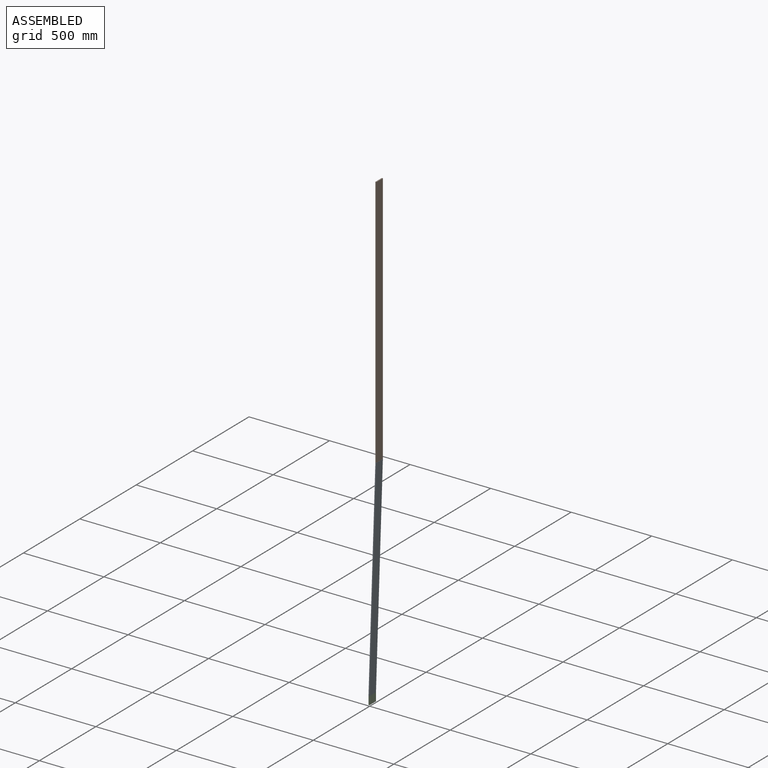
[diagram: assembled view]
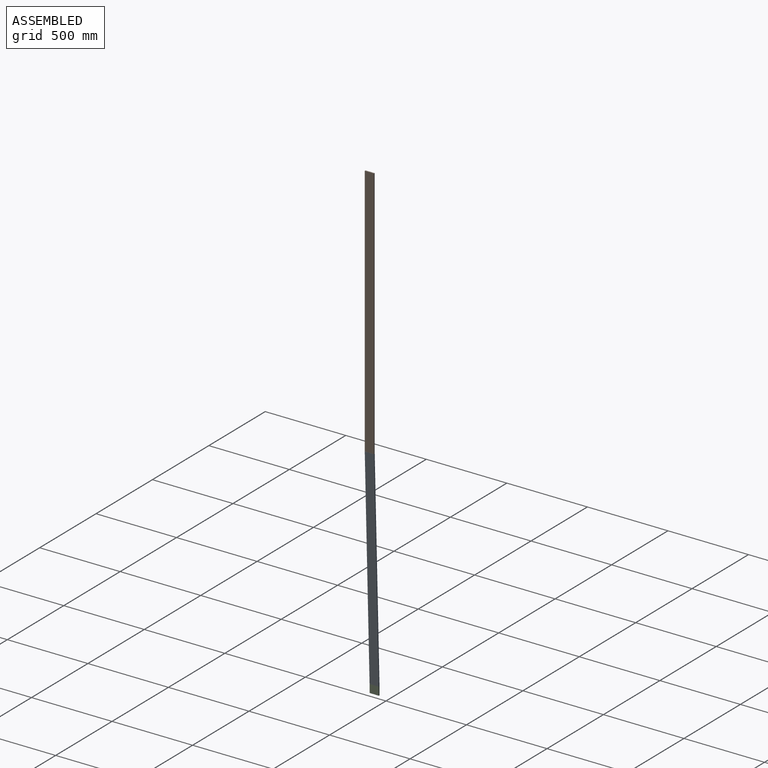
[diagram: assembled view, second angle]
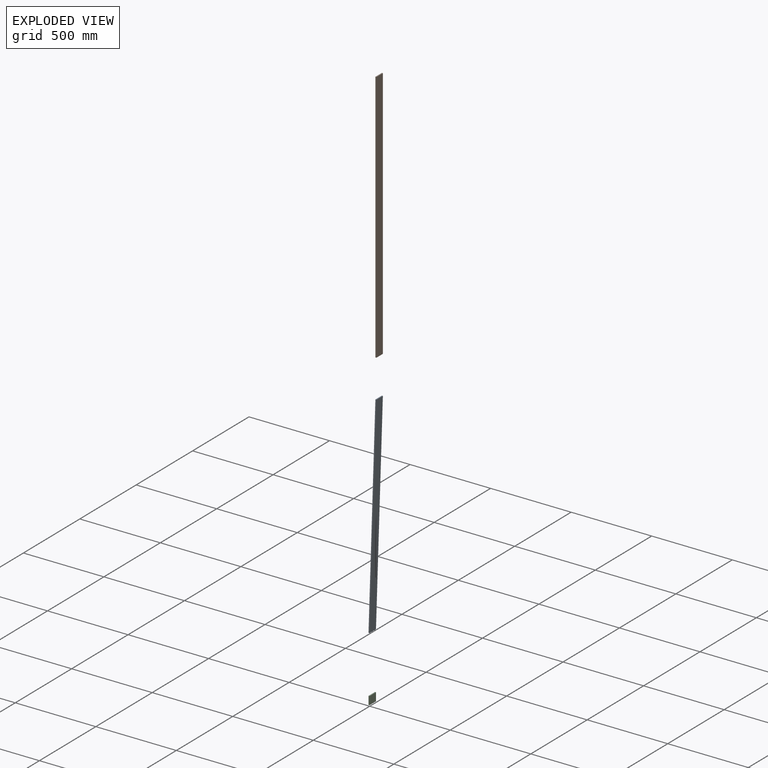
[diagram: exploded view]
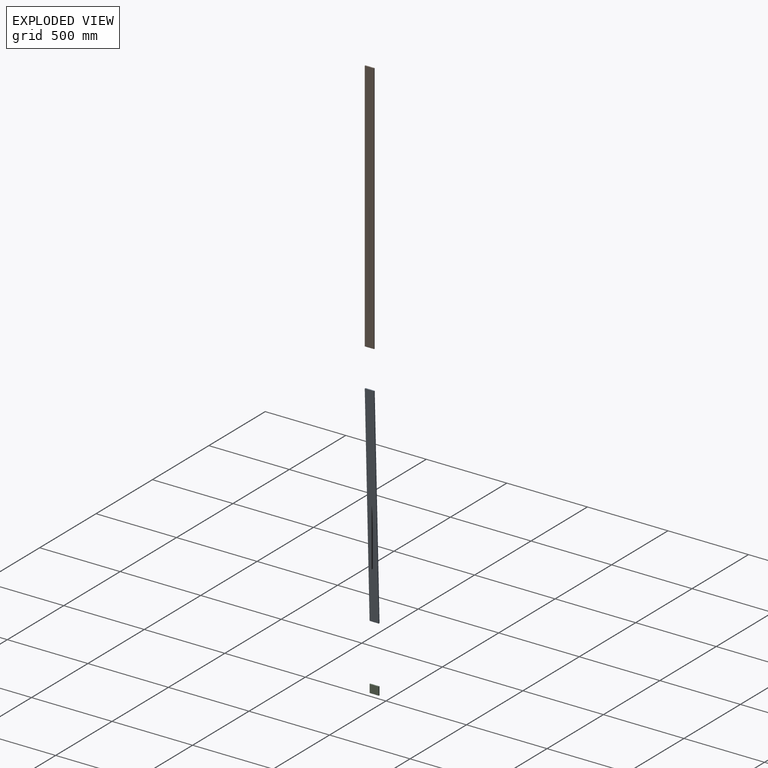
[diagram: exploded view, second angle]
ASSEMBLY  parts=3 mates=2
PART A: 6 faces, bbox 62.8x55.9x1320.8 mm
  f0: plane 1320.8x48.81mm, normal (0.99,-0.12,0), area 8390.2mm2, adj f1,f2,f3,f4
  f1: plane 57.5x13.39mm, normal (0,-0.03,1), area 362.9mm2, adj f0,f2,f4,f5
  f2: plane 1320.59x62.02mm, normal (0.12,0.99,0.03), area 75511.7mm2, adj f0,f1,f3,f5
  f3: plane 57.5x13.39mm, normal (0,0.03,-1), area 362.9mm2, adj f0,f2,f4,f5
  f4: plane 1320.59x62.02mm, normal (-0.12,-0.99,-0.03), area 75511.7mm2, adj f0,f1,f3,f5
  f5: plane 1320.8x48.81mm, normal (-0.99,0.12,0), area 8390.2mm2, adj f1,f2,f3,f4
PART B: 6 faces, bbox 6.4x57.2x1574.8 mm
  f0: plane 1574.8x6.35mm, normal (0,1,0), area 10000mm2, adj f1,f3,f4,f5
  f1: plane 1574.8x57.15mm, normal (-1,0,0), area 89999.8mm2, adj f0,f2,f4,f5
  f2: plane 1574.8x6.35mm, normal (0,-1,0), area 10000mm2, adj f1,f3,f4,f5
  f3: plane 1574.8x57.15mm, normal (1,0,0), area 89999.8mm2, adj f0,f2,f4,f5
  f4: plane 57.15x6.35mm, normal (0,0,-1), area 362.9mm2, adj f0,f1,f2,f3
  f5: plane 57.15x6.35mm, normal (0,0,1), area 362.9mm2, adj f0,f1,f2,f3
PART C: 6 faces, bbox 6.4x57.2x50.8 mm
  f0: plane 50.8x6.35mm, normal (0,-1,0), area 322.6mm2, adj f1,f3,f4,f5
  f1: plane 57.15x50.8mm, normal (1,0,0), area 2903.2mm2, adj f0,f2,f4,f5
  f2: plane 50.8x6.35mm, normal (0,1,0), area 322.6mm2, adj f1,f3,f4,f5
  f3: plane 57.15x50.8mm, normal (-1,0,0), area 2903.2mm2, adj f0,f2,f4,f5
  f4: plane 57.15x6.35mm, normal (0,0,1), area 362.9mm2, adj f0,f1,f2,f3
  f5: plane 57.15x6.35mm, normal (0,0,-1), area 362.9mm2, adj f0,f1,f2,f3
PLACE A rot(axis=(0,0,1),97.1deg) t=(-2307.17,826.09,0)mm
PLACE B at identity
PLACE C t=(8.11,0,0)mm
MATE fastened A.f5 <-> B.f2  axis (0,-1,0) through (-1916.51,-568.33,3505.2)mm
MATE fastened C.f0 <-> A.f5  axis (0,-1,0) through (-1953,-568.33,2184.4)mm
